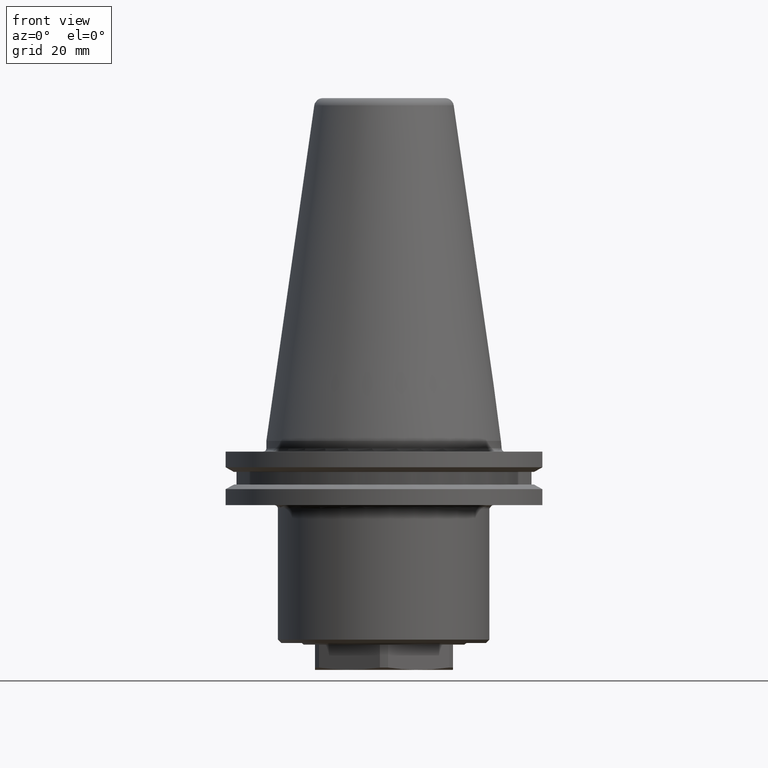
[diagram: clean part render]
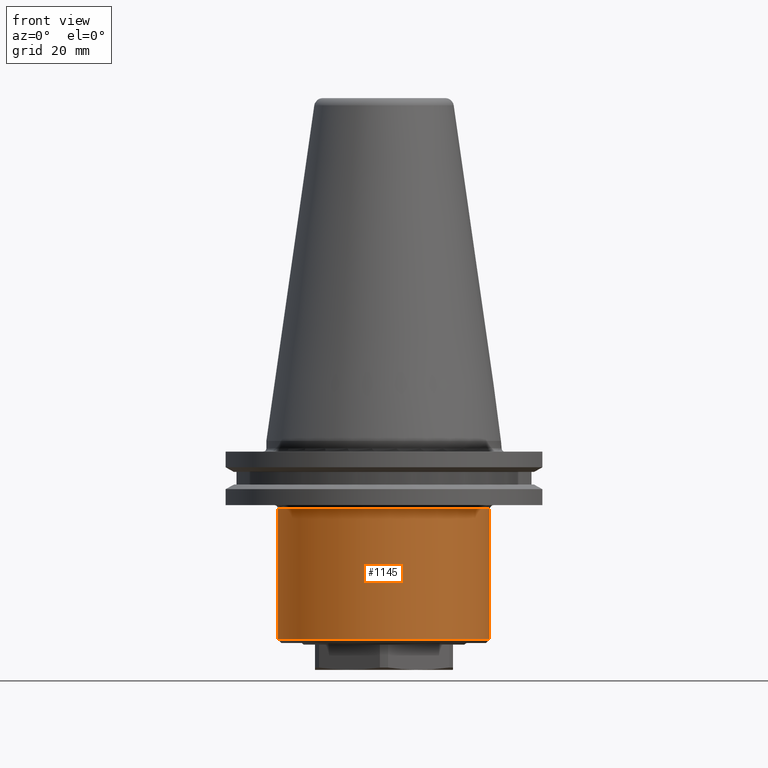
[diagram: same view with one face highlighted and labeled with its STEP entity id]
A machine part, front view. The second image highlights one B-rep face of the part: STEP entity #1145.
In plain terms, the highlighted cylindrical surface (bore or boss wall) has radius 31.5 mm, axis along (0, 0, -1).
Its self-contained STEP definition (entity closure, byte-faithful):
#32=CYLINDRICAL_SURFACE('',#1245,31.5);
#348=ORIENTED_EDGE('',*,*,#627,.F.);
#349=ORIENTED_EDGE('',*,*,#628,.T.);
#627=EDGE_CURVE('',#776,#776,#875,.T.);
#628=EDGE_CURVE('',#777,#777,#876,.T.);
#776=VERTEX_POINT('',#1893);
#777=VERTEX_POINT('',#1896);
#875=CIRCLE('',#1244,31.5);
#876=CIRCLE('',#1246,31.5);
#940=EDGE_LOOP('',(#348));
#941=EDGE_LOOP('',(#349));
#1029=FACE_BOUND('',#940,.T.);
#1030=FACE_BOUND('',#941,.T.);
#1145=ADVANCED_FACE('',(#1029,#1030),#32,.T.);
#1244=AXIS2_PLACEMENT_3D('',#1892,#1428,#1429);
#1245=AXIS2_PLACEMENT_3D('',#1894,#1430,#1431);
#1246=AXIS2_PLACEMENT_3D('',#1895,#1432,#1433);
#1428=DIRECTION('',(0.,2.22044604925031E-16,-1.));
#1429=DIRECTION('',(-1.,0.,0.));
#1430=DIRECTION('',(0.,2.22044604925031E-16,-1.));
#1431=DIRECTION('',(-1.,0.,0.));
#1432=DIRECTION('',(0.,2.22044604925031E-16,-1.));
#1433=DIRECTION('',(-1.,0.,0.));
#1892=CARTESIAN_POINT('',(0.,1.31006316905769E-14,-59.));
#1893=CARTESIAN_POINT('',(-31.5,1.31006316905769E-14,-59.));
#1894=CARTESIAN_POINT('',(0.,-1.26565424807268E-14,57.));
#1895=CARTESIAN_POINT('',(0.,4.46309655899313E-15,-20.1));
#1896=CARTESIAN_POINT('',(-31.5,4.46309655899313E-15,-20.1));